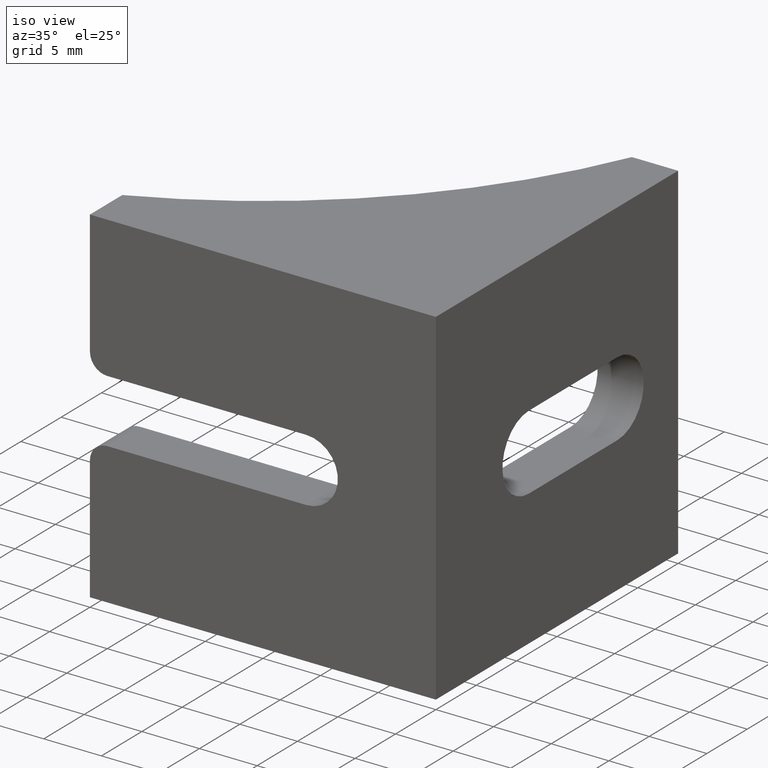
[diagram: clean part render]
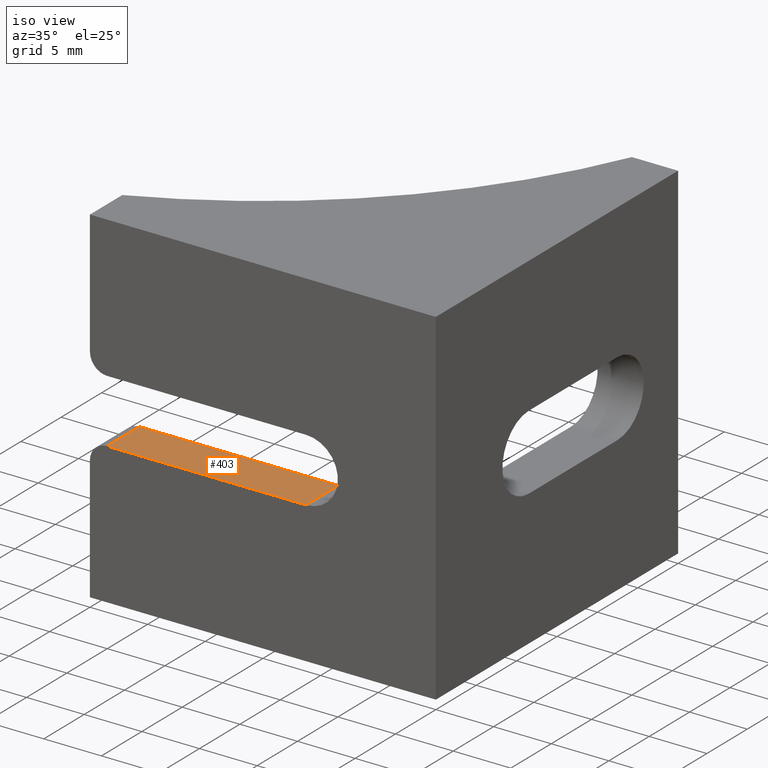
[diagram: same view with one face highlighted and labeled with its STEP entity id]
A machine part, iso view. The second image highlights one B-rep face of the part: STEP entity #403.
In plain terms, the highlighted planar face has unit normal (0, 0, -1).
Its self-contained STEP definition (entity closure, byte-faithful):
#21=PLANE('',#433);
#38=FACE_OUTER_BOUND('',#58,.T.);
#58=EDGE_LOOP('',(#303,#304,#305,#306));
#78=LINE('',#586,#122);
#83=LINE('',#597,#127);
#94=LINE('',#625,#138);
#95=LINE('',#626,#139);
#122=VECTOR('',#468,4.00205758755086);
#127=VECTOR('',#477,17.25);
#138=VECTOR('',#500,17.25);
#139=VECTOR('',#501,4.00205758755086);
#179=VERTEX_POINT('',#579);
#182=VERTEX_POINT('',#584);
#186=VERTEX_POINT('',#596);
#197=VERTEX_POINT('',#624);
#220=EDGE_CURVE('',#182,#179,#78,.T.);
#225=EDGE_CURVE('',#179,#186,#83,.T.);
#239=EDGE_CURVE('',#197,#182,#94,.T.);
#240=EDGE_CURVE('',#197,#186,#95,.T.);
#303=ORIENTED_EDGE('',*,*,#220,.F.);
#304=ORIENTED_EDGE('',*,*,#239,.F.);
#305=ORIENTED_EDGE('',*,*,#240,.T.);
#306=ORIENTED_EDGE('',*,*,#225,.F.);
#403=ADVANCED_FACE('',(#38),#21,.F.);
#433=AXIS2_PLACEMENT_3D('',#623,#498,#499);
#468=DIRECTION('',(0.,1.,0.));
#477=DIRECTION('',(1.,0.,0.));
#498=DIRECTION('center_axis',(0.,0.,-1.));
#499=DIRECTION('ref_axis',(-1.,0.,0.));
#500=DIRECTION('',(-1.,0.,0.));
#501=DIRECTION('',(0.,1.,0.));
#579=CARTESIAN_POINT('',(-13.5,-10.9979424124491,12.25));
#584=CARTESIAN_POINT('',(-13.5,-15.,12.25));
#586=CARTESIAN_POINT('',(-13.5,0.,12.25));
#596=CARTESIAN_POINT('',(3.75,-10.9979424124491,12.25));
#597=CARTESIAN_POINT('',(-5.625,-10.9979424124491,12.25));
#623=CARTESIAN_POINT('Origin',(3.75,-15.,12.25));
#624=CARTESIAN_POINT('',(3.75,-15.,12.25));
#625=CARTESIAN_POINT('',(-5.625,-15.,12.25));
#626=CARTESIAN_POINT('',(3.75,-15.,12.25));